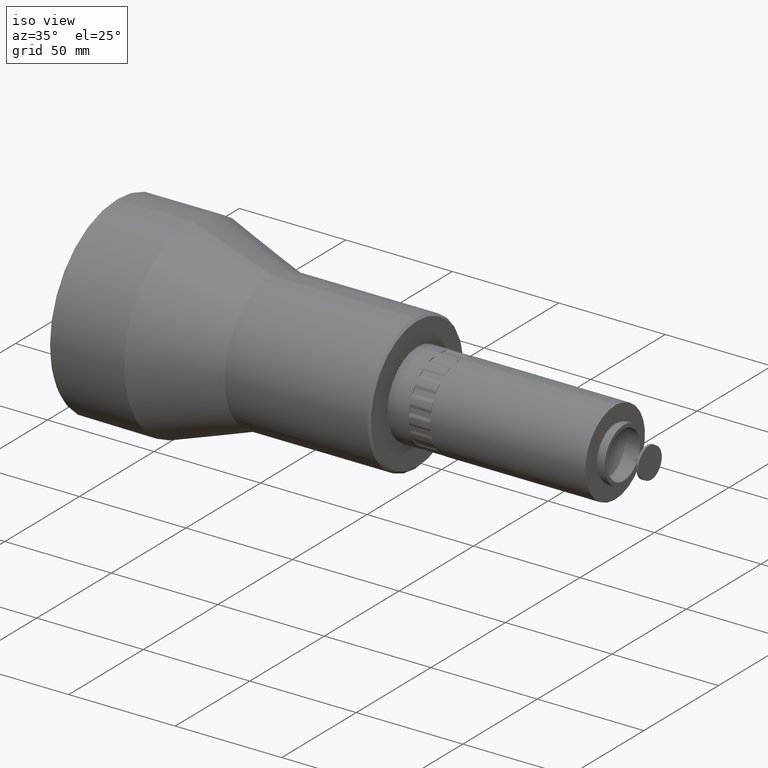
[diagram: clean part render]
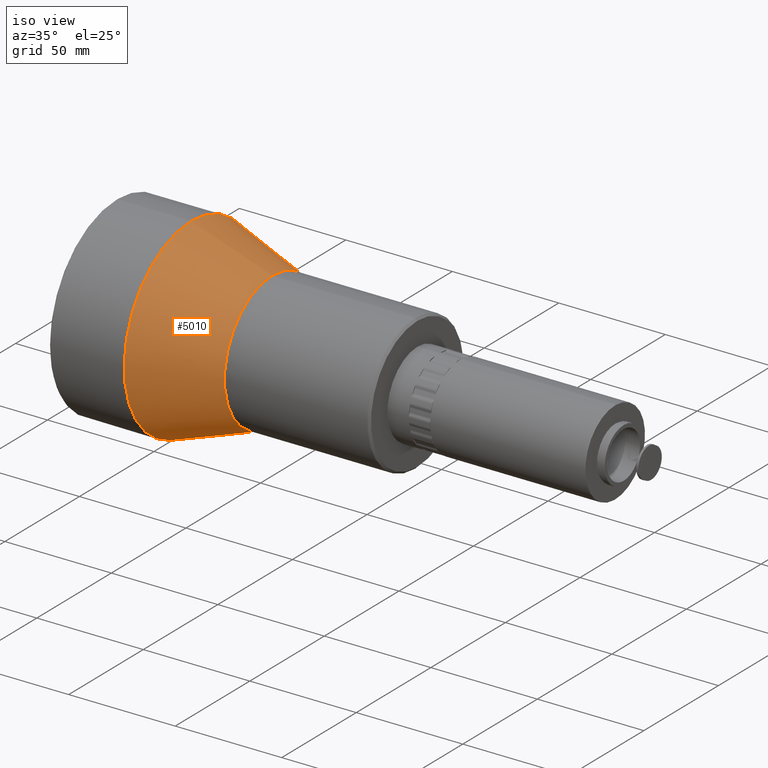
[diagram: same view with one face highlighted and labeled with its STEP entity id]
A machine part, iso view. The second image highlights one B-rep face of the part: STEP entity #5010.
In plain terms, the highlighted conical surface has half-angle 18.897 deg.
Its self-contained STEP definition (entity closure, byte-faithful):
#42 = ORIENTED_EDGE ( 'NONE', *, *, #397, .T. ) ;
#62 = CARTESIAN_POINT ( 'NONE',  ( -42.66178943523738809, 14.57465430743931201, 160.0850000000000080 ) ) ;
#397 = EDGE_CURVE ( 'NONE', #5804, #5804, #7608, .T. ) ;
#658 = DIRECTION ( 'NONE',  ( -1.000000000000000000, -4.818676322157795773E-18, -0.000000000000000000 ) ) ;
#1325 = CONICAL_SURFACE ( 'NONE', #5723, 45.00000000000001421, 0.3298101272966225683 ) ;
#1544 = CARTESIAN_POINT ( 'NONE',  ( -42.66178943523736677, 14.57465430743931201, 160.0850000000000080 ) ) ;
#1836 = CARTESIAN_POINT ( 'NONE',  ( -4.684820483310265793, 14.57465430743931201, 192.0850000000000080 ) ) ;
#2306 = CARTESIAN_POINT ( 'NONE',  ( -4.684820483310265793, 14.57465430743931201, 160.0850000000000080 ) ) ;
#2589 = AXIS2_PLACEMENT_3D ( 'NONE', #1544, #3508, #2885 ) ;
#2885 = DIRECTION ( 'NONE',  ( -3.083952846180989294E-16, 0.000000000000000000, 1.000000000000000000 ) ) ;
#2932 = DIRECTION ( 'NONE',  ( 0.000000000000000000, 0.000000000000000000, 1.000000000000000000 ) ) ;
#3288 = AXIS2_PLACEMENT_3D ( 'NONE', #2306, #3440, #2932 ) ;
#3440 = DIRECTION ( 'NONE',  ( 1.000000000000000000, 0.000000000000000000, 0.000000000000000000 ) ) ;
#3508 = DIRECTION ( 'NONE',  ( 1.000000000000000000, 0.000000000000000000, 0.000000000000000000 ) ) ;
#3646 = FACE_OUTER_BOUND ( 'NONE', #5086, .T. ) ;
#3666 = EDGE_CURVE ( 'NONE', #5995, #5995, #4012, .T. ) ;
#4012 = CIRCLE ( 'NONE', #3288, 32.00000000000000000 ) ;
#5010 = ADVANCED_FACE ( 'NONE', ( #6172, #3646 ), #1325, .T. ) ;
#5086 = EDGE_LOOP ( 'NONE', ( #42 ) ) ;
#5723 = AXIS2_PLACEMENT_3D ( 'NONE', #62, #658, #7287 ) ;
#5804 = VERTEX_POINT ( 'NONE', #7030 ) ;
#5995 = VERTEX_POINT ( 'NONE', #1836 ) ;
#6172 = FACE_BOUND ( 'NONE', #6748, .T. ) ;
#6748 = EDGE_LOOP ( 'NONE', ( #6837 ) ) ;
#6837 = ORIENTED_EDGE ( 'NONE', *, *, #3666, .F. ) ;
#7030 = CARTESIAN_POINT ( 'NONE',  ( -42.66178943523738099, 14.57465430743931201, 205.0850000000000080 ) ) ;
#7287 = DIRECTION ( 'NONE',  ( 0.000000000000000000, -1.000000000000000000, 0.000000000000000000 ) ) ;
#7608 = CIRCLE ( 'NONE', #2589, 45.00000000000001421 ) ;